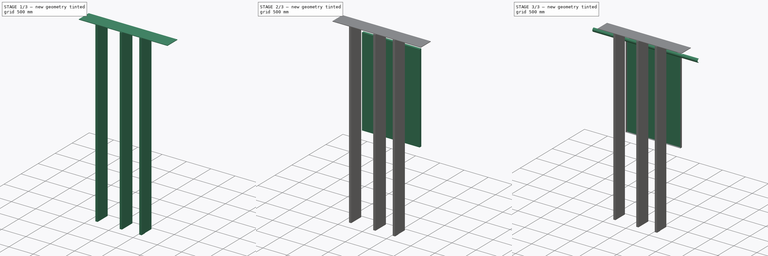
[diagram: build sequence overview — one tinted view per stage of 3, left to right]
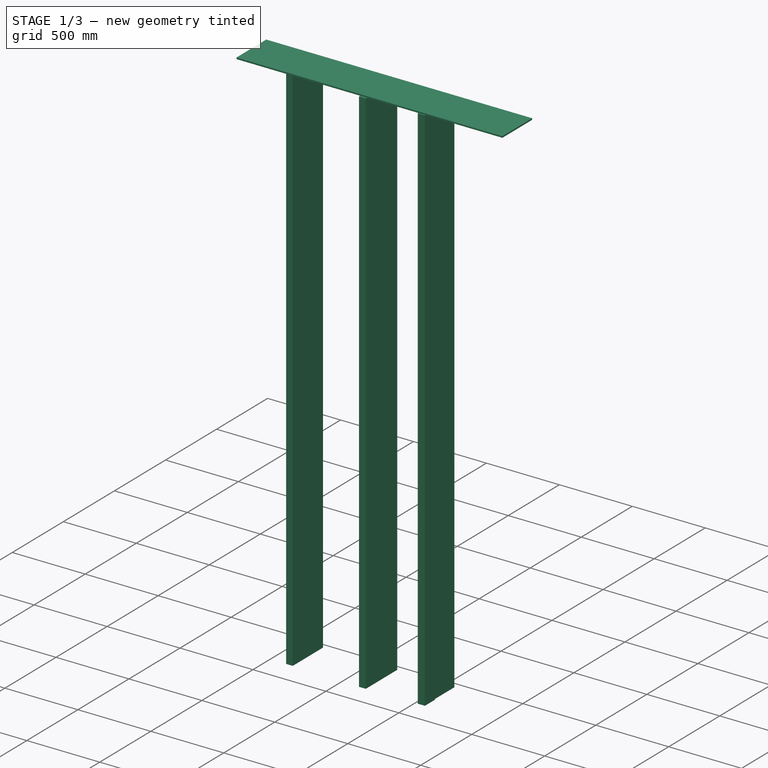
[diagram: stage 1 of 3 — iso view after this stage's code; geometry added in this stage tinted green]
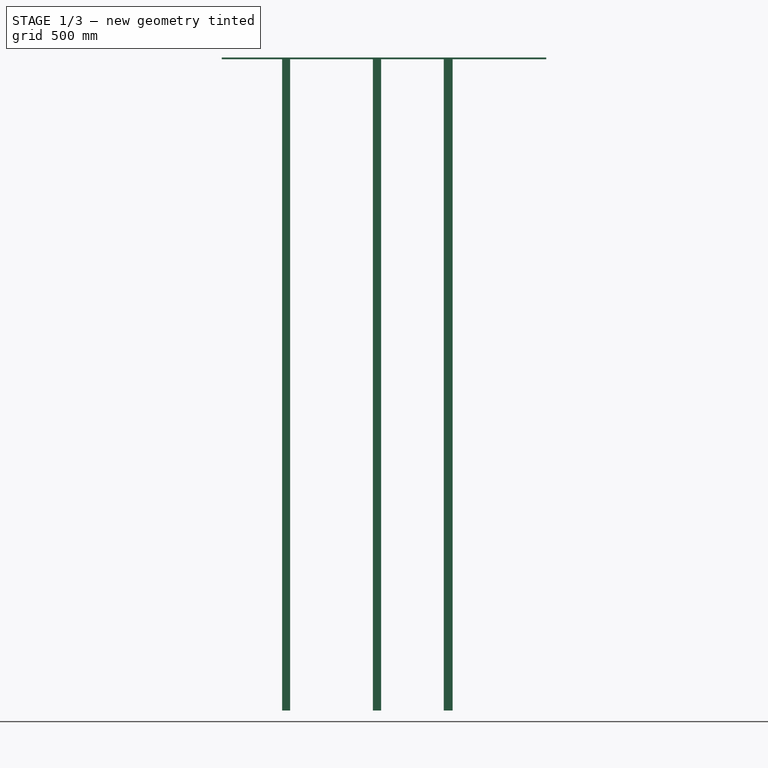
[diagram: stage 1 of 3 — front view after this stage's code; geometry added in this stage tinted green]
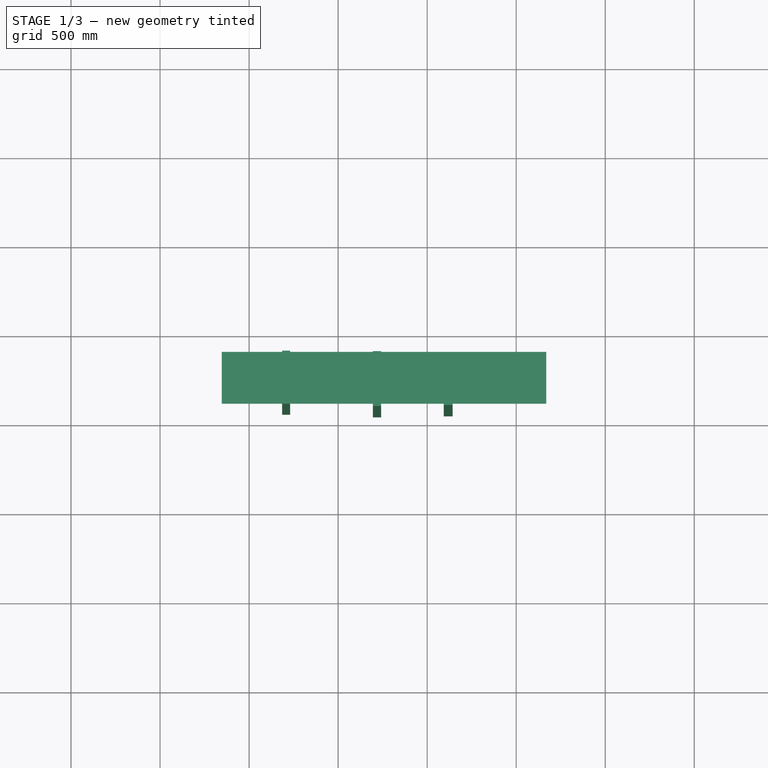
[diagram: stage 1 of 3 — top view after this stage's code; geometry added in this stage tinted green]
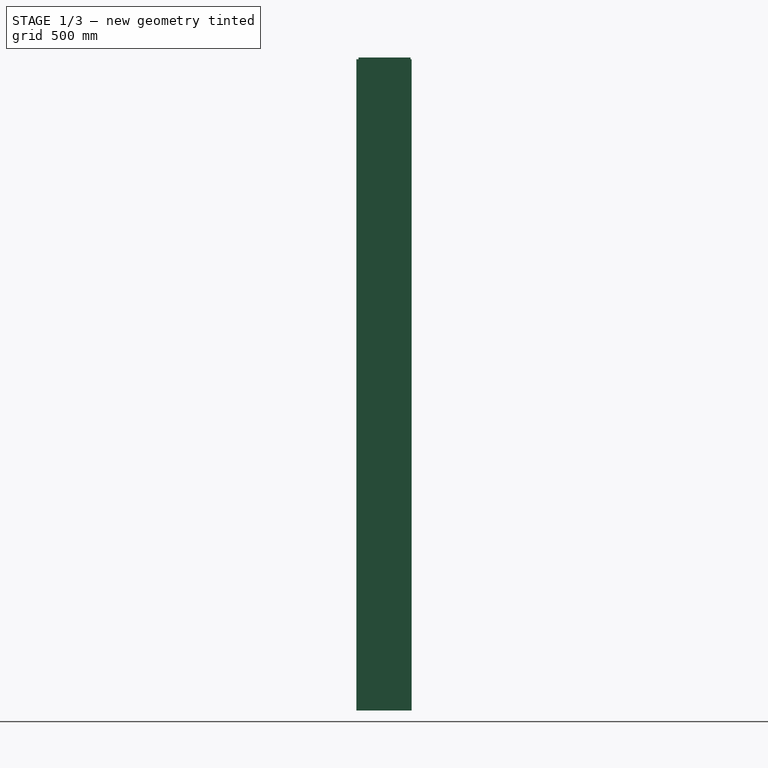
[diagram: stage 1 of 3 — right view after this stage's code; geometry added in this stage tinted green]
FCSTD DOCUMENT  (FreeCAD 0.16R6712 (Git))
Label: roof detail
License: All rights reserved
LicenseURL: http://en.wikipedia.org/wiki/All_rights_reserved
objects: Part::Feature×11, Sketcher::SketchObject×7, PartDesign::Pad×3, PartDesign::Pocket×2
note: 28 computed .brp shape members not serialized (recipe doc carries the construction recipe); baked Part::Feature solids carry a one-line shape summary decoded from their .brp

FEATURE [Part::Feature] Pocket004
  Placement = pos=(406.669,0,-1830.54) rot=(0.57735,0.57735,0.57735;2.0944rad)
  shape: bbox 2286 x 40.34 x 81.54 mm, 22 faces (baked)
FEATURE [Part::Feature] Pad002002  label="Purlin001"
  Placement = pos=(-329.429,-0.885735,-1527.93) rot=(0,0,1;0rad)
  shape: bbox 2286 x 38.1 x 88.9 mm, 6 faces (baked)
FEATURE [Sketcher::SketchObject] Sketch005
  Placement = pos=(0,0,609.6) rot=(0,0,1;0rad)
  sketch-geometry (16):
    g0: LineSegment StartX=-1314.64 StartY=-143.192 StartZ=0 EndX=-1269.61 EndY=-143.192 EndZ=0
    g1: LineSegment StartX=-1269.61 StartY=-143.192 StartZ=0 EndX=-1269.61 EndY=-439.152 EndZ=0
    g2: LineSegment StartX=-1269.61 StartY=-439.152 StartZ=0 EndX=-1314.64 EndY=-439.152 EndZ=0
    g3: LineSegment StartX=-1314.64 StartY=-439.152 StartZ=0 EndX=-1314.64 EndY=-143.192 EndZ=0
    g4: LineSegment StartX=-805.053 StartY=-145.559 StartZ=0 EndX=-758.524 EndY=-145.559 EndZ=0
    g5: LineSegment StartX=-758.524 StartY=-145.559 StartZ=0 EndX=-758.524 EndY=-453.812 EndZ=0
    g6: LineSegment StartX=-758.524 StartY=-453.812 StartZ=0 EndX=-805.053 EndY=-453.812 EndZ=0
    g7: LineSegment StartX=-805.053 StartY=-453.812 StartZ=0 EndX=-805.053 EndY=-145.559 EndZ=0
    g8: LineSegment StartX=-406.651 StartY=-151.375 StartZ=0 EndX=-363.03 EndY=-151.375 EndZ=0
    g9: LineSegment StartX=-363.03 StartY=-151.375 StartZ=0 EndX=-363.03 EndY=-447.996 EndZ=0
    g10: LineSegment StartX=-363.03 StartY=-447.996 StartZ=0 EndX=-406.651 EndY=-447.996 EndZ=0
    g11: LineSegment StartX=-406.651 StartY=-447.996 StartZ=0 EndX=-406.651 EndY=-151.375 EndZ=0
    g12: LineSegment StartX=-357.214 StartY=-447.996 StartZ=0 EndX=-389.203 EndY=-447.996 EndZ=0
    g13: LineSegment StartX=-389.203 StartY=-447.996 StartZ=0 EndX=-389.203 EndY=-349.122 EndZ=0
    g14: LineSegment StartX=-389.203 StartY=-349.122 StartZ=0 EndX=-357.214 EndY=-349.122 EndZ=0
    g15: LineSegment StartX=-357.214 StartY=-349.122 StartZ=0 EndX=-357.214 EndY=-447.996 EndZ=0
  constraints (32):
    c: Coincident(g0,g1)
    c: Coincident(g1,g2)
    c: Coincident(g2,g3)
    c: Coincident(g3,g0)
    c: Horizontal(g0)
    c: Horizontal(g2)
    c: Vertical(g1)
    c: Vertical(g3)
    c: Coincident(g4,g5)
    c: Coincident(g5,g6)
    c: Coincident(g6,g7)
    c: Coincident(g7,g4)
    c: Horizontal(g4)
    c: Horizontal(g6)
    c: Vertical(g5)
    c: Vertical(g7)
    c: Coincident(g8,g9)
    c: Coincident(g9,g10)
    c: Coincident(g10,g11)
    c: Coincident(g11,g8)
    c: Horizontal(g8)
    c: Horizontal(g10)
    c: Vertical(g9)
    c: Vertical(g11)
    c: Coincident(g12,g13)
    c: Coincident(g13,g14)
    c: Coincident(g14,g15)
    c: Coincident(g15,g12)
    c: Horizontal(g12)
    c: Horizontal(g14)
    c: Vertical(g13)
    c: Vertical(g15)
FEATURE [PartDesign::Pad] Pad002003
  Length = 3657.6
  Length2 = 100
  Placement = pos=(0,0,609.6) rot=(0,0,1;0rad)
  Reversed = true
  Sketch = -> Sketch005
  Type = 0
FEATURE [Part::Feature] Pocket005  label="PV Panel"
  Placement = pos=(-1182.73,0,345.44) rot=(0,0,1;0rad)
  shape: bbox 1190 x 48.88 x 1829 mm, 11 faces (baked)
FEATURE [Part::Feature] Pad002004  label="Purlin002"
  Placement = pos=(-37.7434,0,-1217.72) rot=(0,0,1;0rad)
  shape: bbox 2286 x 38.1 x 88.9 mm, 6 faces (baked)
FEATURE [Sketcher::SketchObject] Sketch006
  Placement = pos=(0,0,609.6) rot=(0,0,1;0rad)
  sketch-geometry (4):
    g0: LineSegment StartX=-1653.9 StartY=-149.756 StartZ=0 EndX=169.04 EndY=-149.756 EndZ=0
    g1: LineSegment StartX=169.04 StartY=-149.756 StartZ=0 EndX=169.04 EndY=-441.426 EndZ=0
    g2: LineSegment StartX=169.04 StartY=-441.426 StartZ=0 EndX=-1653.9 EndY=-441.426 EndZ=0
    g3: LineSegment StartX=-1653.9 StartY=-441.426 StartZ=0 EndX=-1653.9 EndY=-149.756 EndZ=0
  constraints (8):
    c: Coincident(g0,g1)
    c: Coincident(g1,g2)
    c: Coincident(g2,g3)
    c: Coincident(g3,g0)
    c: Horizontal(g0)
    c: Horizontal(g2)
    c: Vertical(g1)
    c: Vertical(g3)
FEATURE [PartDesign::Pad] Pad002005  label="Fascia"
  Length = 10
  Length2 = 100
  Placement = pos=(0,0,609.6) rot=(0,0,1;0rad)
  Sketch = -> Sketch006
  Type = 0
FEATURE [Part::Feature] Pocket006  label="PV Panel001"
  Placement = pos=(1189.21,6.74062,344.791) rot=(0,0,1;0rad)
  shape: bbox 1190 x 48.88 x 1829 mm, 11 faces (baked)
FEATURE [Part::Feature] Pad002006  label="Purlin003"
  Placement = pos=(-37.7434,0,-1217.72) rot=(0,0,1;0rad)
  shape: bbox 2286 x 38.1 x 88.9 mm, 6 faces (baked)
FEATURE [Part::Feature] Pad002007  label="Purlin004"
  Placement = pos=(-26.2812,0,-86.4772) rot=(0,0,1;0rad)
  shape: bbox 2286 x 38.1 x 88.9 mm, 6 faces (baked)
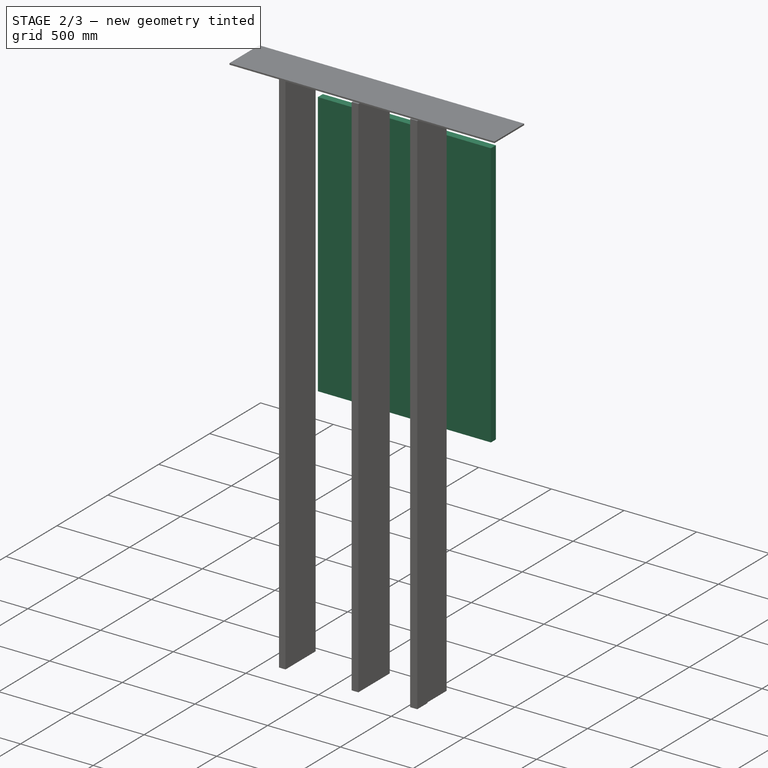
[diagram: stage 2 of 3 — iso view after this stage's code; geometry added in this stage tinted green]
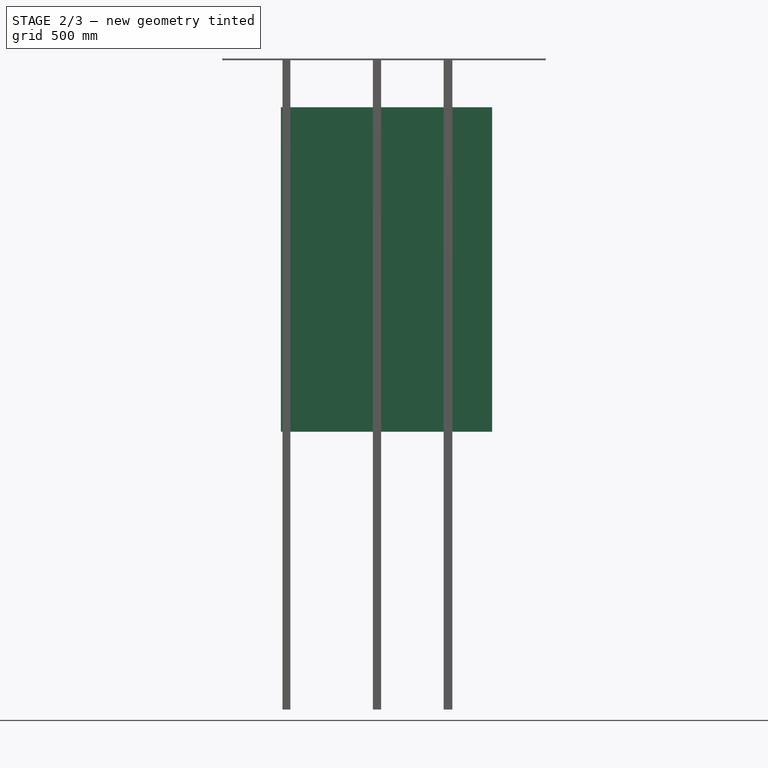
[diagram: stage 2 of 3 — front view after this stage's code; geometry added in this stage tinted green]
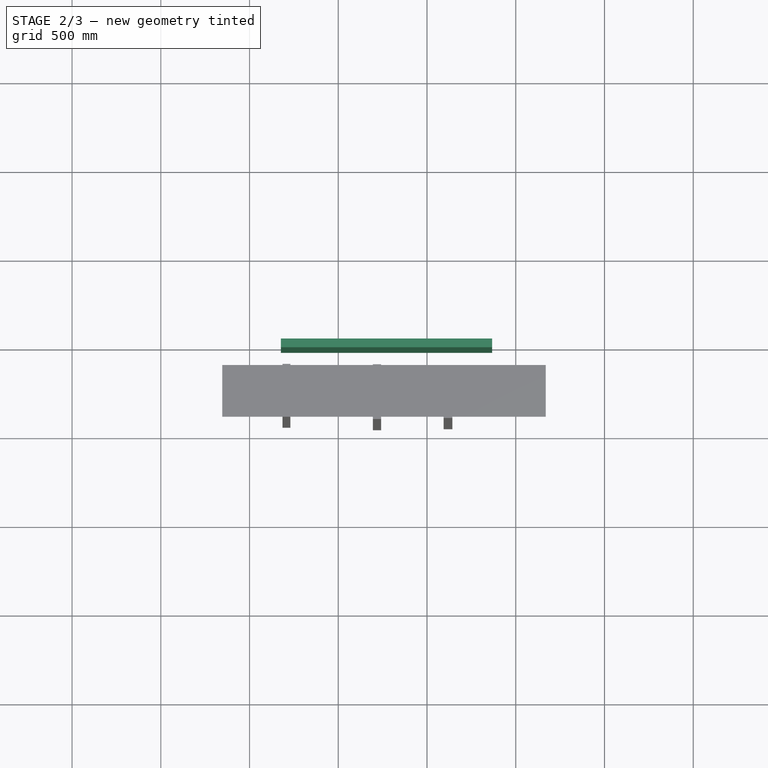
[diagram: stage 2 of 3 — top view after this stage's code; geometry added in this stage tinted green]
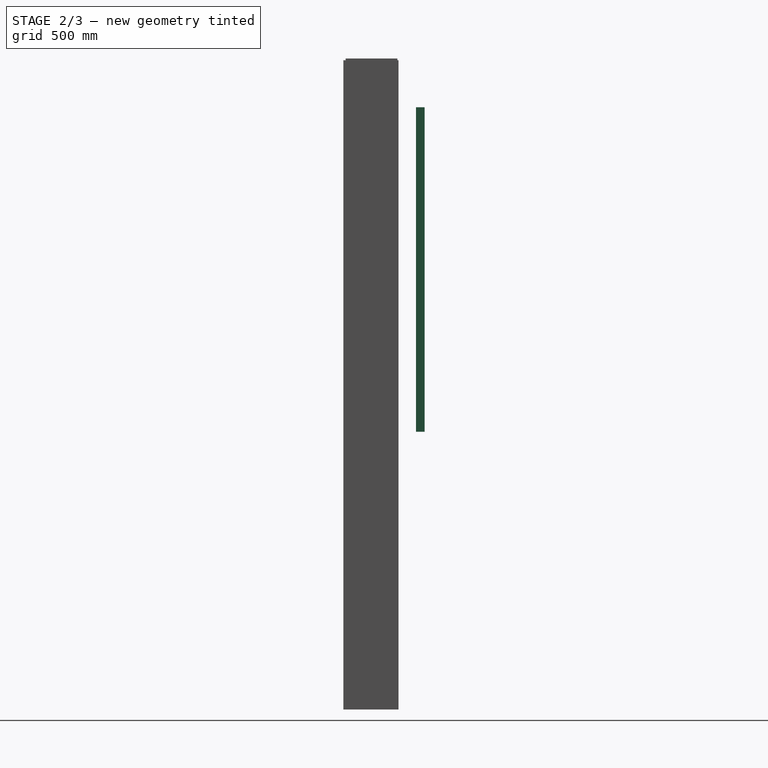
[diagram: stage 2 of 3 — right view after this stage's code; geometry added in this stage tinted green]
FEATURE [Sketcher::SketchObject] Sketch002
  Placement = pos=(0,-44.8407,330.2) rot=(1,0,0;1.5708rad)
FEATURE [Sketcher::SketchObject] Sketch003
  Placement = pos=(0,-44.8407,330.2) rot=(1,0,0;1.5708rad)
FEATURE [Sketcher::SketchObject] Sketch001
  Placement = pos=(0,0,345.44) rot=(0,0,1;0rad)
  sketch-geometry (4):
    g0: LineSegment StartX=-1323.44 StartY=4.03745 StartZ=0 EndX=-133.112 EndY=4.03745 EndZ=0
    g1: LineSegment StartX=-133.112 StartY=4.03745 StartZ=0 EndX=-133.112 EndY=-44.8407 EndZ=0
    g2: LineSegment StartX=-133.112 StartY=-44.8407 StartZ=0 EndX=-1323.44 EndY=-44.8407 EndZ=0
    g3: LineSegment StartX=-1323.44 StartY=-44.8407 StartZ=0 EndX=-1323.44 EndY=4.03745 EndZ=0
  constraints (8):
    c: Coincident(g0,g1)
    c: Coincident(g1,g2)
    c: Coincident(g2,g3)
    c: Coincident(g3,g0)
    c: Horizontal(g0)
    c: Horizontal(g2)
    c: Vertical(g1)
    c: Vertical(g3)
FEATURE [PartDesign::Pad] Pad
  Length = 1828.8
  Length2 = 100
  Placement = pos=(0,0,345.44) rot=(0,0,1;0rad)
  Reversed = true
  Sketch = -> Sketch001
  Type = 0
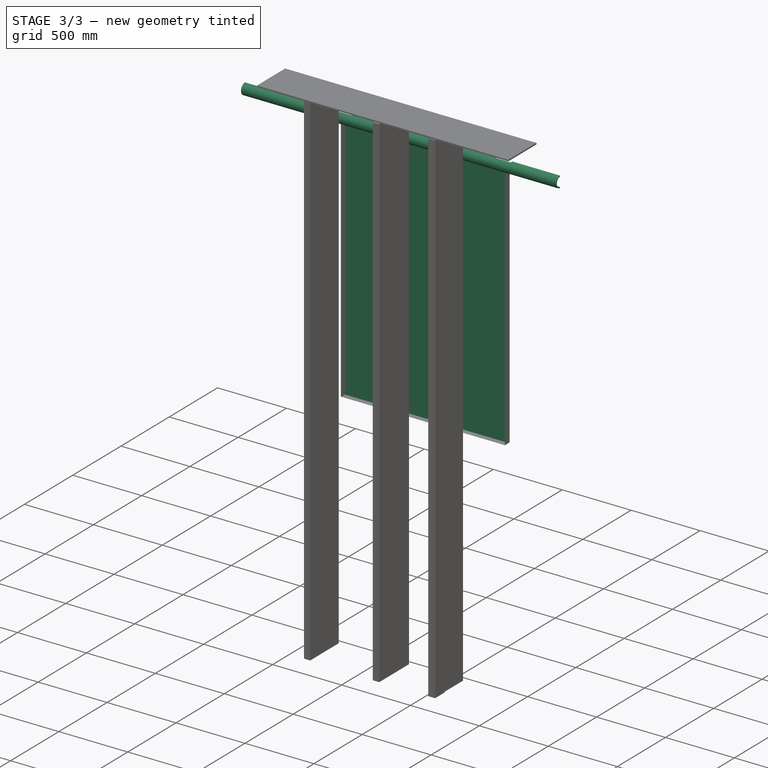
[diagram: stage 3 of 3 — iso view after this stage's code; geometry added in this stage tinted green]
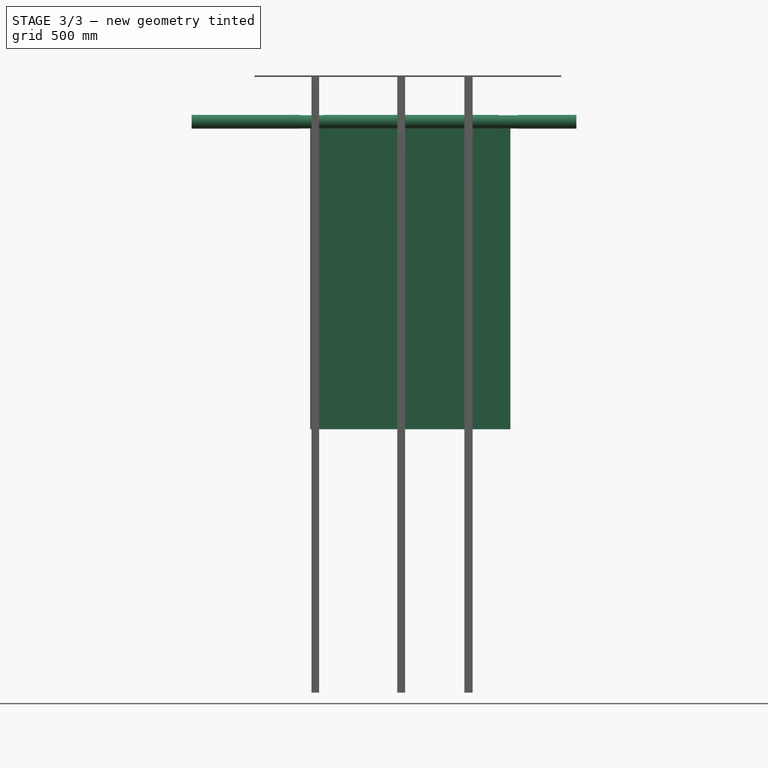
[diagram: stage 3 of 3 — front view after this stage's code; geometry added in this stage tinted green]
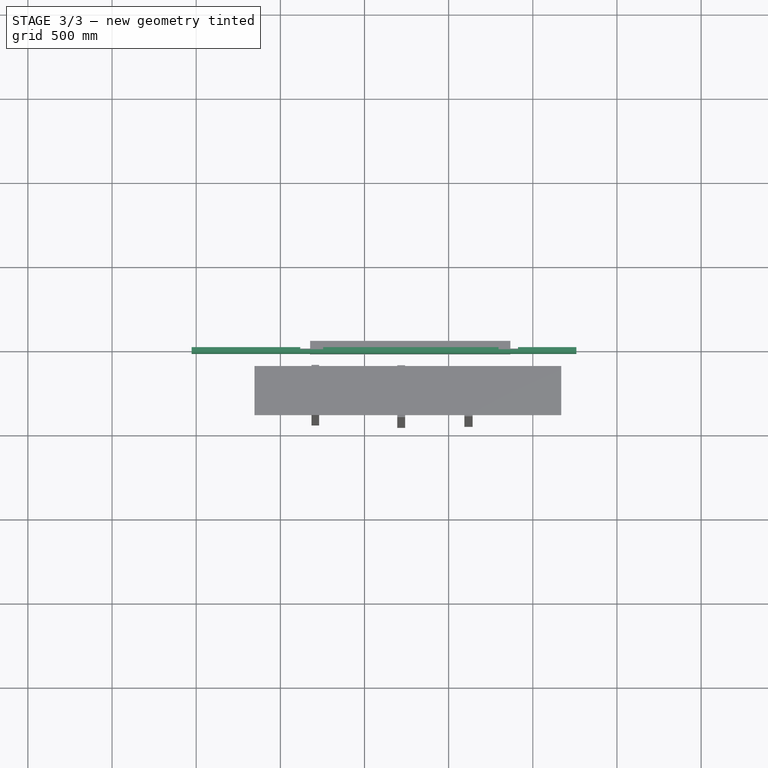
[diagram: stage 3 of 3 — top view after this stage's code; geometry added in this stage tinted green]
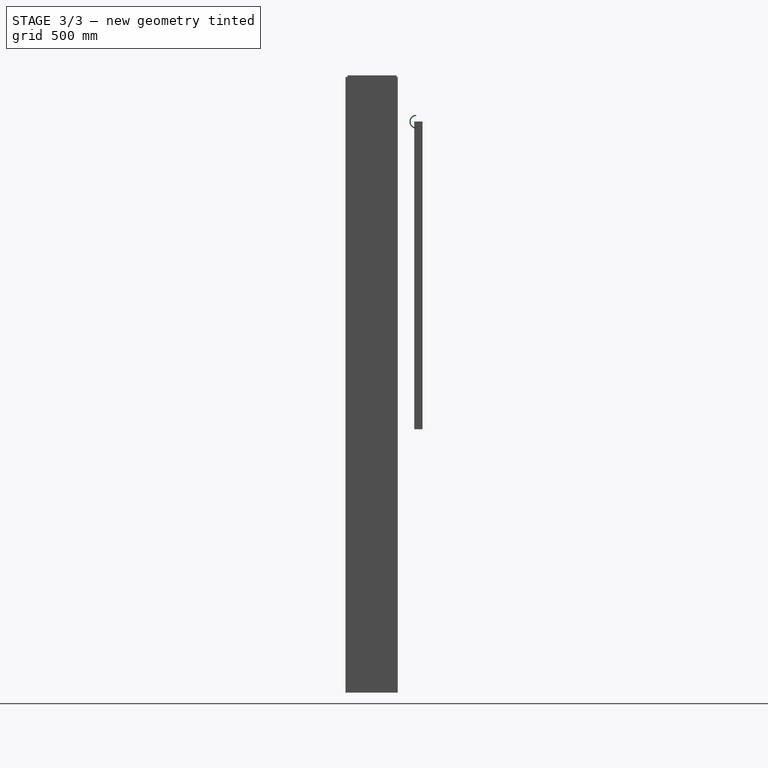
[diagram: stage 3 of 3 — right view after this stage's code; geometry added in this stage tinted green]
FEATURE [Part::Feature] Pocket001  label="Slice"
  Placement = pos=(-542.81,-46.6997,-2422.67) rot=(0,0,1;0rad)
  shape: bbox 304.6 x 20.43 x 3048 mm, 22 faces (baked)
FEATURE [Part::Feature] Pocket  label="Slice001"
  Placement = pos=(622.602,-48.108,-2431.96) rot=(0,0,1;0rad)
  shape: bbox 304.6 x 20.43 x 3048 mm, 22 faces (baked)
FEATURE [Part::Feature] Pad003  label="Purlin"
  Placement = pos=(0,0,304.8) rot=(0,0,1;0rad)
  shape: bbox 2286 x 38.1 x 88.9 mm, 6 faces (baked)
FEATURE [Part::Feature] Pad002001  label="Cutter"
  Placement = pos=(258.862,15.0163,-3.71133) rot=(0.57735,0.57735,0.57735;2.0944rad)
  shape: bbox 2286 x 40.34 x 81.54 mm, 6 faces (baked)
FEATURE [Sketcher::SketchObject] Sketch
  Placement = pos=(258.862,-7.84982,-5.23574) rot=(-0.564107,-0.564107,-0.602966;2.0564rad)
  Support = -> Pad002001 [Face1]
  sketch-geometry (8):
    g0: LineSegment StartX=279.774 StartY=-346.95 StartZ=0 EndX=432.834 EndY=-346.95 EndZ=0
    g1: LineSegment StartX=432.834 StartY=-346.95 StartZ=0 EndX=432.834 EndY=-462.998 EndZ=0
    g2: LineSegment StartX=432.834 StartY=-462.998 StartZ=0 EndX=279.774 EndY=-462.998 EndZ=0
    g3: LineSegment StartX=279.774 StartY=-462.998 StartZ=0 EndX=279.774 EndY=-346.95 EndZ=0
    g4: LineSegment StartX=254.334 StartY=-1504.53 StartZ=0 EndX=443.1 EndY=-1504.53 EndZ=0
    g5: LineSegment StartX=443.1 StartY=-1504.53 StartZ=0 EndX=443.1 EndY=-1640.48 EndZ=0
    g6: LineSegment StartX=443.1 StartY=-1640.48 StartZ=0 EndX=254.334 EndY=-1640.48 EndZ=0
    g7: LineSegment StartX=254.334 StartY=-1640.48 StartZ=0 EndX=254.334 EndY=-1504.53 EndZ=0
  constraints (16):
    c: Coincident(g0,g1)
    c: Coincident(g1,g2)
    c: Coincident(g2,g3)
    c: Coincident(g3,g0)
    c: Horizontal(g0)
    c: Horizontal(g2)
    c: Vertical(g1)
    c: Vertical(g3)
    c: Coincident(g4,g5)
    c: Coincident(g5,g6)
    c: Coincident(g6,g7)
    c: Coincident(g7,g4)
    c: Horizontal(g4)
    c: Horizontal(g6)
    c: Vertical(g5)
    c: Vertical(g7)
FEATURE [PartDesign::Pocket] Pocket002
  Length = 12.7
  Placement = pos=(258.862,15.0163,-3.71133) rot=(0.57735,0.57735,0.57735;2.0944rad)
  Sketch = -> Sketch
  Type = 0
FEATURE [Sketcher::SketchObject] Sketch004
  Placement = pos=(0,-44.8407,345.44) rot=(1,0,0;1.5708rad)
  Support = -> Pad [Face3]
  sketch-geometry (4):
    g0: LineSegment StartX=-1318.99 StartY=-4.09552 StartZ=0 EndX=-133.259 EndY=-4.09552 EndZ=0
    g1: LineSegment StartX=-133.259 StartY=-4.09552 StartZ=0 EndX=-133.259 EndY=-1828.65 EndZ=0
    g2: LineSegment StartX=-133.259 StartY=-1828.65 StartZ=0 EndX=-1318.99 EndY=-1828.65 EndZ=0
    g3: LineSegment StartX=-1318.99 StartY=-1828.65 StartZ=0 EndX=-1318.99 EndY=-4.09552 EndZ=0
  constraints (8):
    c: Coincident(g0,g1)
    c: Coincident(g1,g2)
    c: Coincident(g2,g3)
    c: Coincident(g3,g0)
    c: Horizontal(g0)
    c: Horizontal(g2)
    c: Vertical(g1)
    c: Vertical(g3)
FEATURE [PartDesign::Pocket] Pocket003
  Length = 38.1
  Placement = pos=(0,0,345.44) rot=(0,0,1;0rad)
  Sketch = -> Sketch004
  Type = 0
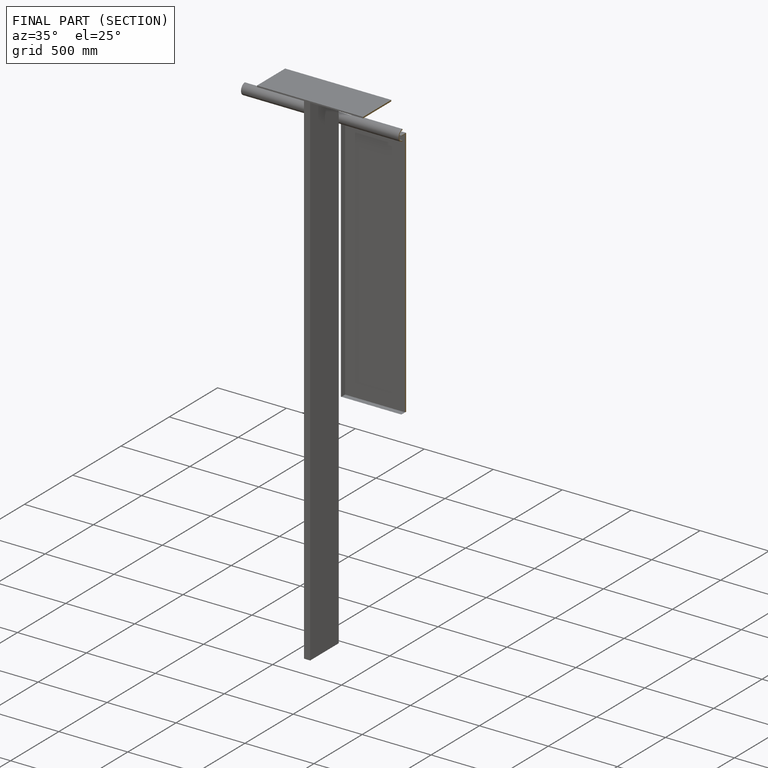
[diagram: finished part — half-section view (interior)]
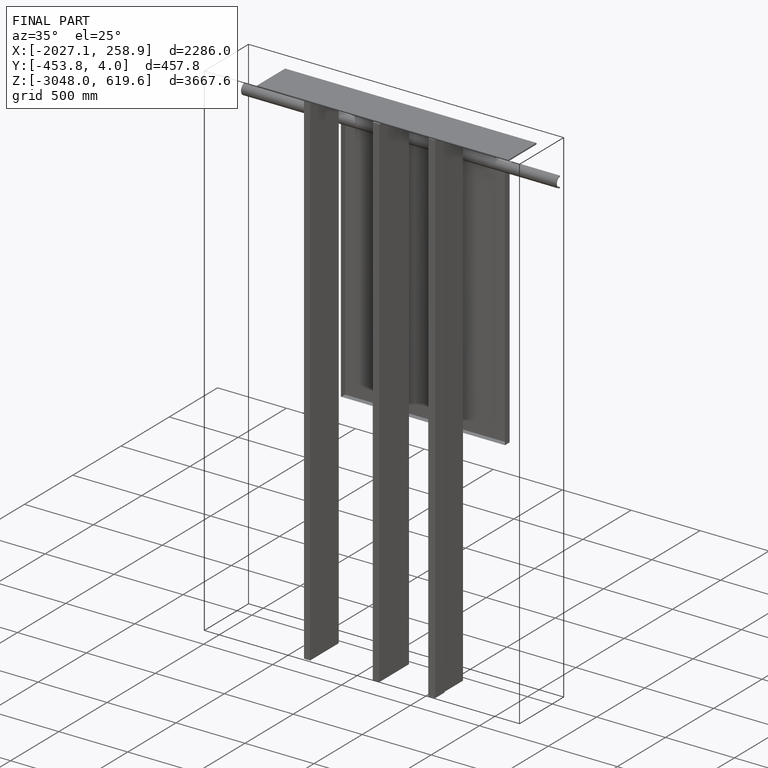
[diagram: finished part — iso view with bounding-box wireframe]
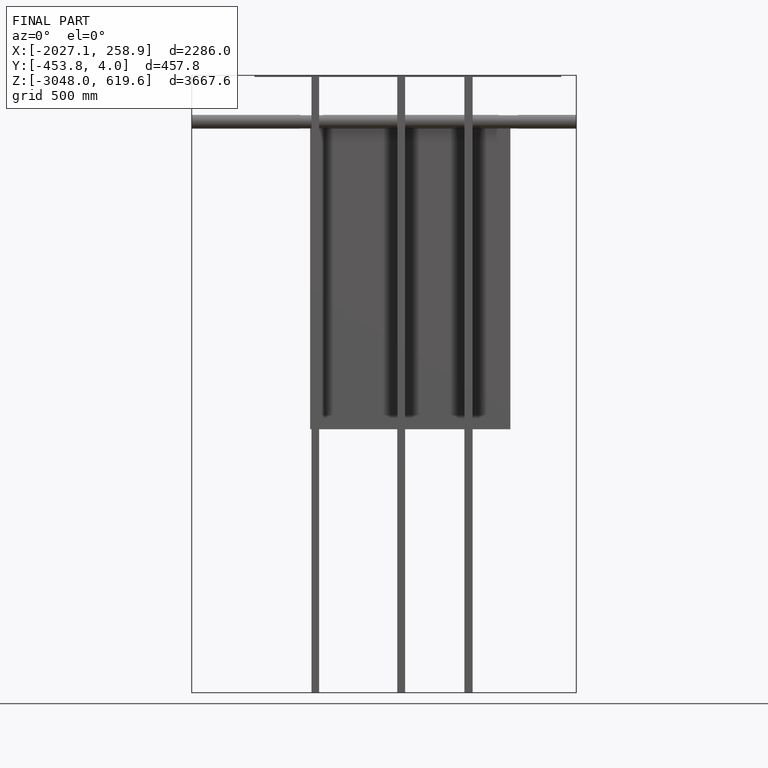
[diagram: finished part — front view with bounding-box wireframe]
